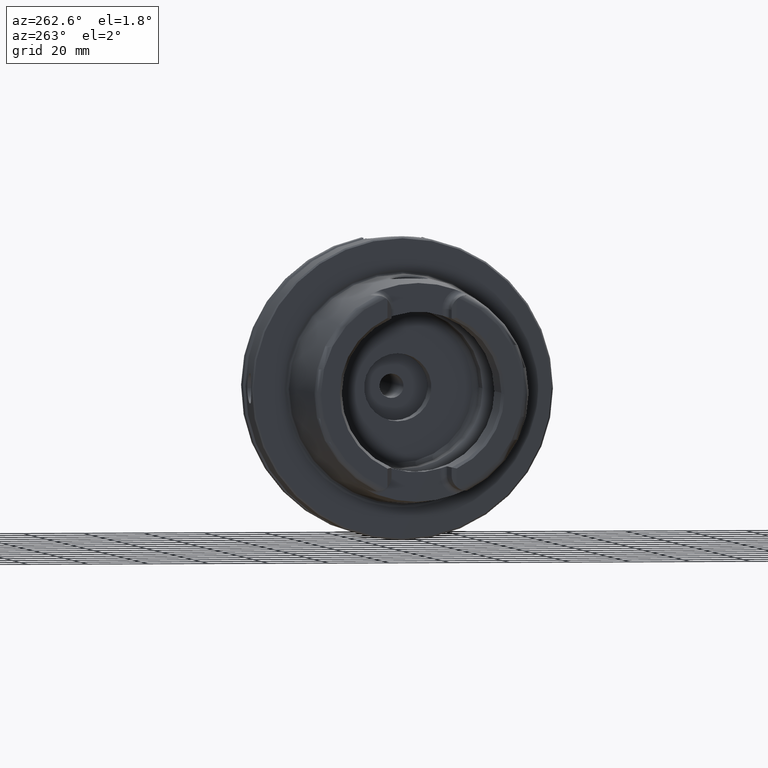
[diagram: clean part render]
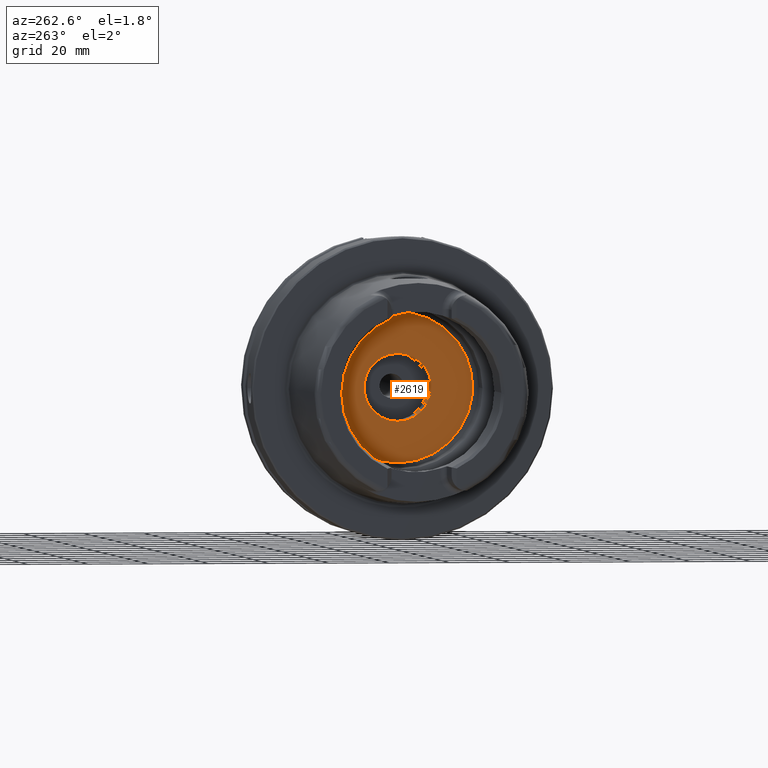
[diagram: same view with one face highlighted and labeled with its STEP entity id]
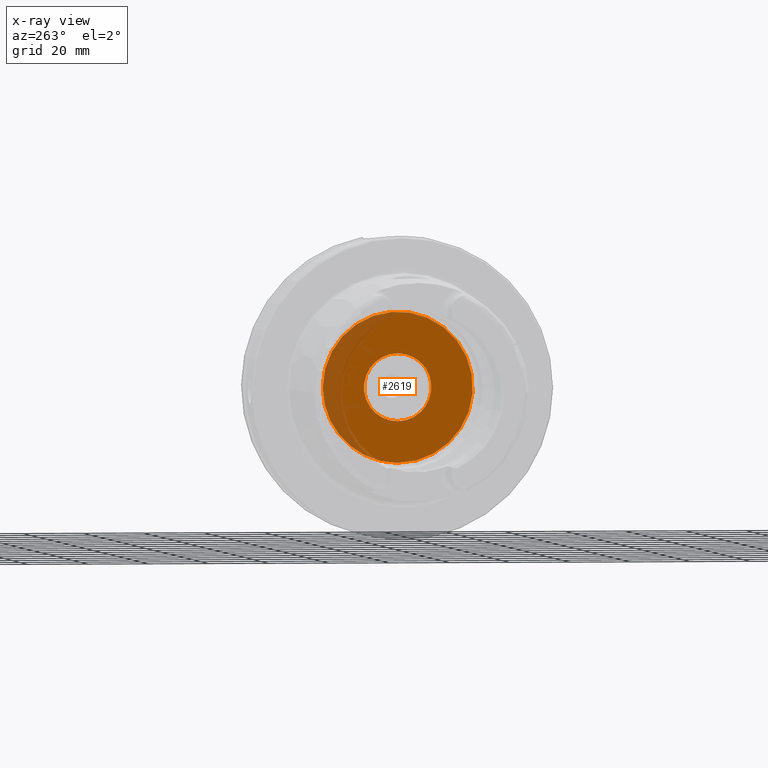
[diagram: x-ray of the same camera — body ghosted, the highlighted face saturated]
A machine part, auxiliary view. The second image highlights one B-rep face of the part: STEP entity #2619.
The next image is the same camera in x-ray: the body ghosted, the highlighted face saturated — about 19% of this face is hidden behind the body in this view.
In plain terms, the highlighted planar face has unit normal (1, 0, 0).
Its self-contained STEP definition (entity closure, byte-faithful):
#125=FACE_BOUND('',#685,.T.);
#161=PLANE('',#2970);
#542=FACE_OUTER_BOUND('',#684,.T.);
#684=EDGE_LOOP('',(#2352,#2353));
#685=EDGE_LOOP('',(#2354,#2355));
#894=CIRCLE('',#2964,11.188101);
#895=CIRCLE('',#2965,11.188101);
#899=CIRCLE('',#2971,24.9);
#900=CIRCLE('',#2972,24.9);
#1193=VERTEX_POINT('',#5492);
#1194=VERTEX_POINT('',#5493);
#1198=VERTEX_POINT('',#5505);
#1199=VERTEX_POINT('',#5506);
#1591=EDGE_CURVE('',#1193,#1194,#894,.T.);
#1592=EDGE_CURVE('',#1194,#1193,#895,.T.);
#1597=EDGE_CURVE('',#1198,#1199,#899,.T.);
#1598=EDGE_CURVE('',#1199,#1198,#900,.T.);
#2352=ORIENTED_EDGE('',*,*,#1597,.T.);
#2353=ORIENTED_EDGE('',*,*,#1598,.T.);
#2354=ORIENTED_EDGE('',*,*,#1591,.T.);
#2355=ORIENTED_EDGE('',*,*,#1592,.T.);
#2619=ADVANCED_FACE('',(#542,#125),#161,.F.);
#2964=AXIS2_PLACEMENT_3D('',#5494,#3742,#3743);
#2965=AXIS2_PLACEMENT_3D('',#5495,#3744,#3745);
#2970=AXIS2_PLACEMENT_3D('',#5504,#3755,#3756);
#2971=AXIS2_PLACEMENT_3D('',#5507,#3757,#3758);
#2972=AXIS2_PLACEMENT_3D('',#5508,#3759,#3760);
#3742=DIRECTION('center_axis',(1.,0.,0.));
#3743=DIRECTION('ref_axis',(0.,0.,1.));
#3744=DIRECTION('center_axis',(1.,0.,0.));
#3745=DIRECTION('ref_axis',(0.,0.,1.));
#3755=DIRECTION('center_axis',(1.,0.,0.));
#3756=DIRECTION('ref_axis',(0.,0.,-1.));
#3757=DIRECTION('center_axis',(-1.,0.,0.));
#3758=DIRECTION('ref_axis',(0.,0.,1.));
#3759=DIRECTION('center_axis',(-1.,0.,0.));
#3760=DIRECTION('ref_axis',(0.,0.,1.));
#5492=CARTESIAN_POINT('',(12.5,0.,11.188101));
#5493=CARTESIAN_POINT('',(12.5,-1.37014720781873E-15,-11.188101));
#5494=CARTESIAN_POINT('Origin',(12.5,0.,0.));
#5495=CARTESIAN_POINT('Origin',(12.5,0.,0.));
#5504=CARTESIAN_POINT('Origin',(12.5,24.9,0.));
#5505=CARTESIAN_POINT('',(12.5,24.9,0.));
#5506=CARTESIAN_POINT('',(12.5,-3.04937052987691E-15,-24.9));
#5507=CARTESIAN_POINT('Origin',(12.5,0.,0.));
#5508=CARTESIAN_POINT('Origin',(12.5,0.,0.));